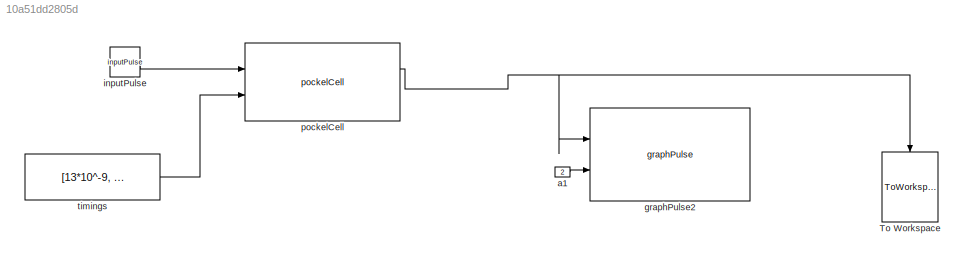
MODEL slx_10a51dd2805d
KIND model
BLOCK [ToWorkspace] To Workspace
  MaxDataPoints = inf
  Ports = [1]
  SampleTime = -1
  VariableName = simout
BLOCK [Constant] a1
  Value = 2
BLOCK [Reference] graphPulse2  REF=opticalComponentLibrary/graphPulse
  Ports = [2]
  SourceBlock = opticalComponentLibrary/graphPulse
  SourceType = SubSystem
BLOCK [Constant] inputPulse
  Value = inputPulse
BLOCK [Reference] pockelCell  REF=opticalComponentLibrary/pockelCell
  Ports = [2, 2]
  SourceBlock = opticalComponentLibrary/pockelCell
  SourceType = SubSystem
BLOCK [Constant] timings
  Value = [13*10^-9, 69*10^-9]
LINE a1:1 -> graphPulse2:2
LINE inputPulse:1 -> pockelCell:1
NET pockelCell:1 -> To Workspace:1, graphPulse2:1
LINE timings:1 -> pockelCell:2
note: NET lines group one-source signal fan-out (src -> all destinations, sorted); 1:1 wires keep LINE
